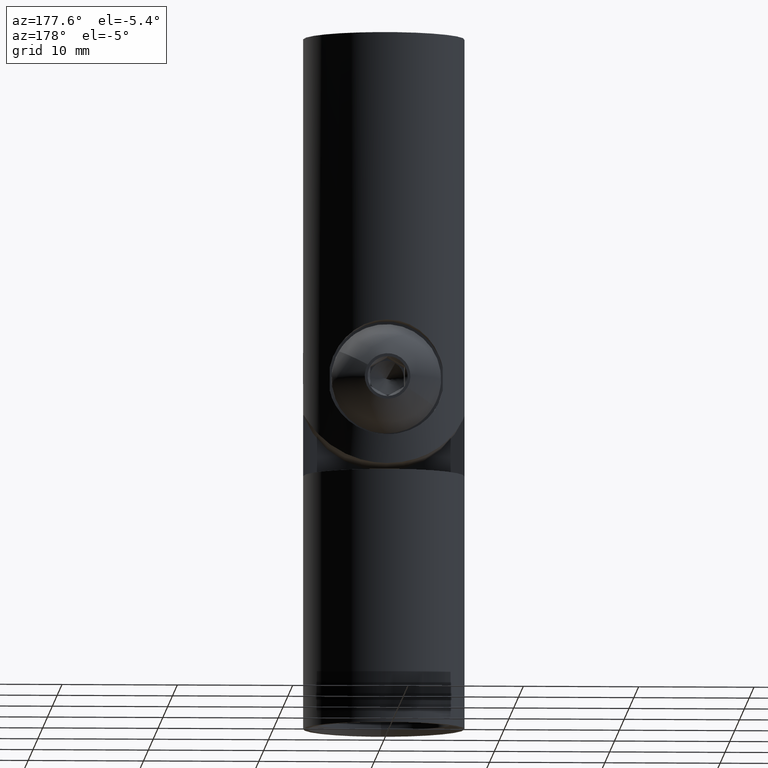
[diagram: clean part render]
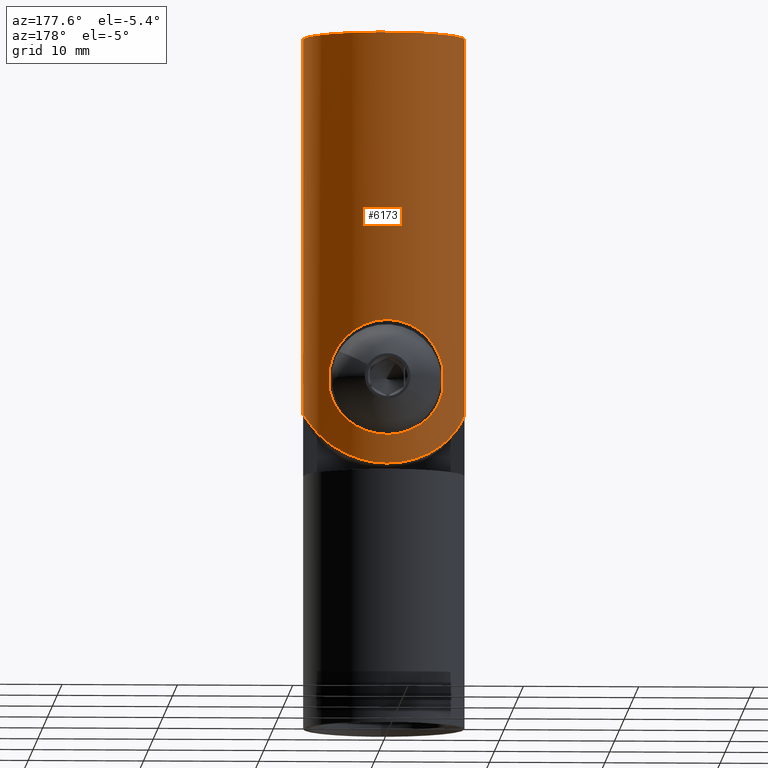
[diagram: same view with one face highlighted and labeled with its STEP entity id]
A machine part, auxiliary view. The second image highlights one B-rep face of the part: STEP entity #6173.
In plain terms, the highlighted cylindrical surface (partial cylindrical patch) has radius 7 mm, axis along (-0, -0, -1).
Its self-contained STEP definition (entity closure, byte-faithful):
#40 = CARTESIAN_POINT ( 'NONE',  ( 0.000000000000000000, 7.000000000000000000, -13.00000000000000178 ) ) ;
#93 = CARTESIAN_POINT ( 'NONE',  ( -2.296083420598693969, 6.637111014351908977, -12.48031419842977208 ) ) ;
#186 = EDGE_CURVE ( 'NONE', #10665, #5879, #13745, .T. ) ;
#239 = CARTESIAN_POINT ( 'NONE',  ( -0.6044185469944249878, 6.980038597748216667, -12.97215643878880265 ) ) ;
#241 = CARTESIAN_POINT ( 'NONE',  ( 7.000000000000000000, 8.572527594031473190E-16, 22.00000000000000000 ) ) ;
#258 = DIRECTION ( 'NONE',  ( 0.000000000000000000, 0.000000000000000000, 1.000000000000000000 ) ) ;
#556 = EDGE_CURVE ( 'NONE', #13725, #5879, #945, .T. ) ;
#655 = DIRECTION ( 'NONE',  ( -0.000000000000000000, -0.000000000000000000, -1.000000000000000000 ) ) ;
#721 = CARTESIAN_POINT ( 'NONE',  ( 2.299731958036054014, 6.635776688420713221, -3.521655312212912392 ) ) ;
#760 = CARTESIAN_POINT ( 'NONE',  ( -1.459497406017914445, 6.851924628215163793, -3.208951439311452880 ) ) ;
#809 = VERTEX_POINT ( 'NONE', #12343 ) ;
#814 = CARTESIAN_POINT ( 'NONE',  ( -1.014079867848785677, 6.930787867623797283, -15.43543686387268643 ) ) ;
#896 = CARTESIAN_POINT ( 'NONE',  ( 4.546330511644266714, 5.324515403986026740, -10.10048989220393878 ) ) ;
#945 = LINE ( 'NONE', #241, #13899 ) ;
#1223 = CARTESIAN_POINT ( 'NONE',  ( -4.136939707189043247, 5.649690451566032223, -10.82201691694677770 ) ) ;
#1308 = EDGE_CURVE ( 'NONE', #6733, #7098, #12537, .T. ) ;
#1375 = VERTEX_POINT ( 'NONE', #12421 ) ;
#1423 = CARTESIAN_POINT ( 'NONE',  ( -7.000000000000000000, 0.000000000000000000, 22.00000000000000000 ) ) ;
#1469 = EDGE_CURVE ( 'NONE', #809, #8125, #10195, .T. ) ;
#1539 = ORIENTED_EDGE ( 'NONE', *, *, #12092, .T. ) ;
#1548 = EDGE_LOOP ( 'NONE', ( #5910, #9254, #3212, #1539, #1790, #13197, #5411 ) ) ;
#1588 = LINE ( 'NONE', #6411, #5340 ) ;
#1615 = CARTESIAN_POINT ( 'NONE',  ( 2.450138959679273020E-16, 7.000000000000015987, -15.50000000000001599 ) ) ;
#1666 = CARTESIAN_POINT ( 'NONE',  ( 4.898979485566355763, 5.000000000000000000, -6.999999999999991118 ) ) ;
#1667 = CARTESIAN_POINT ( 'NONE',  ( 2.011643523409857526, 6.710629377911315530, -12.58670777686183584 ) ) ;
#1786 = CARTESIAN_POINT ( 'NONE',  ( 3.976657288431754811, 5.764672624529453948, -4.956698721148406150 ) ) ;
#1790 = ORIENTED_EDGE ( 'NONE', *, *, #11146, .T. ) ;
#1799 = CARTESIAN_POINT ( 'NONE',  ( -4.453659042678379976, 5.419030401526724106, -14.05006662118064042 ) ) ;
#1832 = CARTESIAN_POINT ( 'NONE',  ( 0.000000000000000000, 7.000000000000000000, -13.00000000000000178 ) ) ;
#1860 = CARTESIAN_POINT ( 'NONE',  ( 3.103023685434608048, 6.279158656940742489, -14.83201125660004216 ) ) ;
#1872 = CARTESIAN_POINT ( 'NONE',  ( -1.172527317746810294, 6.907427810759570797, -3.130305481393267364 ) ) ;
#1874 = CARTESIAN_POINT ( 'NONE',  ( 4.839711728850256911, 5.058070304861542077, -9.290351524307714826 ) ) ;
#1884 = CARTESIAN_POINT ( 'NONE',  ( -3.907927142053708280, 5.811914296742112462, -14.40509185724050845 ) ) ;
#1997 = CARTESIAN_POINT ( 'NONE',  ( 2.450138959679273020E-16, 7.000000000000015987, -15.50000000000001599 ) ) ;
#2043 = CARTESIAN_POINT ( 'NONE',  ( 4.450173661542899950, 5.421836666788093062, -14.05258568978487865 ) ) ;
#2098 = CARTESIAN_POINT ( 'NONE',  ( 4.898979485566355763, 5.000000000000000888, 22.00000000000000000 ) ) ;
#2342 = CARTESIAN_POINT ( 'NONE',  ( -4.839578810093749794, 5.058200538113820421, -9.291002690569090561 ) ) ;
#2345 = EDGE_CURVE ( 'NONE', #1375, #6945, #4607, .T. ) ;
#2349 = CARTESIAN_POINT ( 'NONE',  ( -4.898979485566355763, 5.000000000000000000, -9.000000000000007105 ) ) ;
#2406 = EDGE_CURVE ( 'NONE', #2965, #7098, #1588, .T. ) ;
#2408 = LINE ( 'NONE', #2589, #9095 ) ;
#2480 = CARTESIAN_POINT ( 'NONE',  ( -7.000000000000000000, 0.000000000000000000, -20.00000000000000000 ) ) ;
#2497 = DIRECTION ( 'NONE',  ( -0.000000000000000000, -0.000000000000000000, -1.000000000000000000 ) ) ;
#2589 = CARTESIAN_POINT ( 'NONE',  ( -4.898979485566355763, 5.000000000000000888, 22.00000000000000000 ) ) ;
#2844 = ORIENTED_EDGE ( 'NONE', *, *, #6286, .T. ) ;
#2864 = DIRECTION ( 'NONE',  ( -0.000000000000000000, -0.000000000000000000, 1.000000000000000000 ) ) ;
#2932 = CARTESIAN_POINT ( 'NONE',  ( -0.2900063760935404078, 7.000369636473305235, -2.999482508542872239 ) ) ;
#2965 = VERTEX_POINT ( 'NONE', #1423 ) ;
#2973 = CARTESIAN_POINT ( 'NONE',  ( -2.266863554783694390, 6.628038431484474913, -3.534307485835470164 ) ) ;
#2987 = CARTESIAN_POINT ( 'NONE',  ( -6.607538234081038020, 2.321347933528485452, -11.55127047643201443 ) ) ;
#3029 = CARTESIAN_POINT ( 'NONE',  ( 1.475203136158575568, 6.848675093871658071, -3.213575419749237216 ) ) ;
#3043 = CARTESIAN_POINT ( 'NONE',  ( -3.715343988396557773, 5.937165706032342172, -14.51902597105185500 ) ) ;
#3198 = CARTESIAN_POINT ( 'NONE',  ( -7.000000000000000000, 0.000000000000000000, 0.000000000000000000 ) ) ;
#3212 = ORIENTED_EDGE ( 'NONE', *, *, #186, .F. ) ;
#3442 = CARTESIAN_POINT ( 'NONE',  ( -4.550123549023610714, 5.321232183265161453, -10.09193324840386197 ) ) ;
#3695 = VECTOR ( 'NONE', #2864, 1000.000000000000000 ) ;
#3769 = FACE_BOUND ( 'NONE', #4560, .T. ) ;
#3850 = CARTESIAN_POINT ( 'NONE',  ( 2.760900980508051106, 6.437904290453270839, -12.17828848556697530 ) ) ;
#4047 = CARTESIAN_POINT ( 'NONE',  ( 0.3019887788853311550, 7.000000000000000000, -13.00000000000000355 ) ) ;
#4128 = CARTESIAN_POINT ( 'NONE',  ( 4.780075918394988577, 5.131956242353456155, -13.79341726137005075 ) ) ;
#4174 = CARTESIAN_POINT ( 'NONE',  ( 1.008089008733077163, 6.945344152790238645, -15.44890853163632904 ) ) ;
#4215 = LINE ( 'NONE', #2098, #8303 ) ;
#4221 = CARTESIAN_POINT ( 'NONE',  ( 3.314031259553643416, 6.170156425056483762, -14.73190892426335807 ) ) ;
#4560 = EDGE_LOOP ( 'NONE', ( #6086, #13047, #2844, #11816, #9940 ) ) ;
#4607 = B_SPLINE_CURVE_WITH_KNOTS ( 'NONE', 3,
 ( #1832, #4047, #12787, #6220, #7322, #1667, #9310, #3850, #11487, #4965, #12600, #6053, #11826, #5373, #896, #5283, #1874, #9682 ),
 .UNSPECIFIED., .F., .F.,
 ( 4, 2, 2, 2, 2, 2, 2, 2, 4 ),
 ( -1.301042606982605321E-18, 0.0008913439313030541589, 0.001782687862606109619, 0.002674031793909164862, 0.003565375725212220539, 0.004456719656515275782, 0.005348063587818330591, 0.006239407519121387136, 0.007130751450424441945 ),
 .UNSPECIFIED. ) ;
#4910 = VERTEX_POINT ( 'NONE', #2349 ) ;
#4965 = CARTESIAN_POINT ( 'NONE',  ( 3.418465246275857794, 6.113217916019591414, -11.65937600562722665 ) ) ;
#5044 = CARTESIAN_POINT ( 'NONE',  ( -0.5860100824662537455, 6.981688295460144467, -3.025531465708232393 ) ) ;
#5094 = CARTESIAN_POINT ( 'NONE',  ( -3.415837379854710143, 6.114725322684314790, -4.338094436667679688 ) ) ;
#5105 = CARTESIAN_POINT ( 'NONE',  ( -5.632424313929414339, 4.177368838400298934, -12.96587217374101542 ) ) ;
#5127 = CYLINDRICAL_SURFACE ( 'NONE', #6316, 7.000000000000000000 ) ;
#5140 = CARTESIAN_POINT ( 'NONE',  ( -4.134643339375571713, 5.651342518334890208, -5.174794650016542263 ) ) ;
#5172 = CARTESIAN_POINT ( 'NONE',  ( 7.000000000000000000, 0.000000000000000000, -10.69258240356725054 ) ) ;
#5195 = CARTESIAN_POINT ( 'NONE',  ( -1.988797161500903909, 6.729888983140163816, -15.24843961918347723 ) ) ;
#5283 = CARTESIAN_POINT ( 'NONE',  ( 4.755513866451237526, 5.138547778738862704, -9.570435218131756017 ) ) ;
#5340 = VECTOR ( 'NONE', #13945, 1000.000000000000000 ) ;
#5373 = CARTESIAN_POINT ( 'NONE',  ( 4.422266827701750280, 5.429182206199155480, -10.34938044367606835 ) ) ;
#5411 = ORIENTED_EDGE ( 'NONE', *, *, #2406, .F. ) ;
#5749 = EDGE_CURVE ( 'NONE', #8125, #4910, #2408, .T. ) ;
#5879 = VERTEX_POINT ( 'NONE', #13867 ) ;
#5910 = ORIENTED_EDGE ( 'NONE', *, *, #7617, .F. ) ;
#6053 = CARTESIAN_POINT ( 'NONE',  ( 3.975260454887756367, 5.765706701776081466, -11.04532986885995527 ) ) ;
#6076 = CARTESIAN_POINT ( 'NONE',  ( 0.000000000000000000, 0.000000000000000000, 22.00000000000000000 ) ) ;
#6086 = ORIENTED_EDGE ( 'NONE', *, *, #1469, .T. ) ;
#6157 = CARTESIAN_POINT ( 'NONE',  ( 7.000000000000000000, 0.000000000000000000, -20.00000000000000000 ) ) ;
#6173 = ADVANCED_FACE ( 'NONE', ( #3769, #9414 ), #5127, .T. ) ;
#6174 = CARTESIAN_POINT ( 'NONE',  ( 0.3075841348478650095, 6.999619328607964874, -3.000532940349194710 ) ) ;
#6188 = CARTESIAN_POINT ( 'NONE',  ( -6.532492044656816432, 2.524209097300211813, -11.68818189566784582 ) ) ;
#6220 = CARTESIAN_POINT ( 'NONE',  ( 1.178522539968373417, 6.906282787911510290, -12.86807036236273305 ) ) ;
#6265 = CARTESIAN_POINT ( 'NONE',  ( -4.756686990366632450, 5.137444608518727307, -6.433251261410824817 ) ) ;
#6278 = CARTESIAN_POINT ( 'NONE',  ( -6.740042051753206032, 1.902643130999128518, -11.29285843185200910 ) ) ;
#6286 = EDGE_CURVE ( 'NONE', #4910, #1375, #13988, .T. ) ;
#6316 = AXIS2_PLACEMENT_3D ( 'NONE', #6076, #655, #8269 ) ;
#6319 = CARTESIAN_POINT ( 'NONE',  ( -4.779645340135918907, 5.132038751092206752, -13.79352977384220935 ) ) ;
#6390 = CARTESIAN_POINT ( 'NONE',  ( 1.992725003126049277, 6.729271573665478456, -15.24786374210561313 ) ) ;
#6411 = CARTESIAN_POINT ( 'NONE',  ( -7.000000000000000000, 0.000000000000000000, 22.00000000000000000 ) ) ;
#6448 = CARTESIAN_POINT ( 'NONE',  ( 5.374052073176598832, 4.506180752459514771, -13.24713004076956935 ) ) ;
#6542 = CARTESIAN_POINT ( 'NONE',  ( -2.777687818370432549, 6.443299190317823388, -12.19467356744221576 ) ) ;
#6597 = CARTESIAN_POINT ( 'NONE',  ( -3.419496295163406696, 6.112688328831445972, -11.65851801632767781 ) ) ;
#6654 = CARTESIAN_POINT ( 'NONE',  ( -4.756805042399448347, 5.137308833251054807, -9.566082633758494325 ) ) ;
#6712 = AXIS2_PLACEMENT_3D ( 'NONE', #9307, #8025, #7054 ) ;
#6733 = VERTEX_POINT ( 'NONE', #6751 ) ;
#6736 = CARTESIAN_POINT ( 'NONE',  ( -1.186992972510849453, 6.904875689627988145, -12.86607738480900487 ) ) ;
#6751 = CARTESIAN_POINT ( 'NONE',  ( -6.999999999999999112, -0.000000000000000000, -10.69258240356725054 ) ) ;
#6915 = DIRECTION ( 'NONE',  ( -0.000000000000000000, -0.000000000000000000, 1.000000000000000000 ) ) ;
#6945 = VERTEX_POINT ( 'NONE', #12670 ) ;
#7054 = DIRECTION ( 'NONE',  ( 1.000000000000000000, 0.000000000000000000, 0.000000000000000000 ) ) ;
#7098 = VERTEX_POINT ( 'NONE', #3198 ) ;
#7183 = CARTESIAN_POINT ( 'NONE',  ( -4.898979485566355763, 5.000000000000000000, -6.999999999999991118 ) ) ;
#7227 = CARTESIAN_POINT ( 'NONE',  ( -4.548511329816591342, 5.322635898918072428, -5.904333658063850798 ) ) ;
#7284 = CARTESIAN_POINT ( 'NONE',  ( -6.999999999999998224, 0.2574305402265175124, -10.69258240356724698 ) ) ;
#7322 = CARTESIAN_POINT ( 'NONE',  ( 1.466243900551742918, 6.850502546314248598, -12.78902147830812197 ) ) ;
#7330 = CARTESIAN_POINT ( 'NONE',  ( -0.5104234960644172814, 6.985960656849049322, -15.48689169079388428 ) ) ;
#7494 = CARTESIAN_POINT ( 'NONE',  ( 6.740121740763215463, 1.902307747566967411, -11.29268047561311050 ) ) ;
#7617 = EDGE_CURVE ( 'NONE', #13725, #2965, #9393, .T. ) ;
#7735 = CARTESIAN_POINT ( 'NONE',  ( -4.898979485566355763, 5.000000000000000000, -9.000000000000007105 ) ) ;
#7842 = CARTESIAN_POINT ( 'NONE',  ( -0.3025679691935315718, 7.000000000000000000, -13.00000000000000355 ) ) ;
#8025 = DIRECTION ( 'NONE',  ( 0.000000000000000000, 0.000000000000000000, 1.000000000000000000 ) ) ;
#8125 = VERTEX_POINT ( 'NONE', #13543 ) ;
#8269 = DIRECTION ( 'NONE',  ( -1.000000000000000000, 0.000000000000000000, 0.000000000000000000 ) ) ;
#8303 = VECTOR ( 'NONE', #258, 1000.000000000000000 ) ;
#8335 = CARTESIAN_POINT ( 'NONE',  ( -4.839624708239068873, 5.058155567299349009, -6.709222163503257619 ) ) ;
#8380 = CARTESIAN_POINT ( 'NONE',  ( 4.426164966053137029, 5.426071599279982394, -5.657569479460876849 ) ) ;
#8391 = CARTESIAN_POINT ( 'NONE',  ( -5.368749732199646019, 4.512134487490519597, -13.25228741891429429 ) ) ;
#8411 = CARTESIAN_POINT ( 'NONE',  ( 3.905059737702613276, 5.813828175976520463, -14.40682981141950592 ) ) ;
#8423 = CARTESIAN_POINT ( 'NONE',  ( 4.550541201749033426, 5.320870568143509338, -5.909009481069249503 ) ) ;
#8435 = CARTESIAN_POINT ( 'NONE',  ( -2.458891047116524842, 6.571046651608046574, -15.10090493762181119 ) ) ;
#8486 = CARTESIAN_POINT ( 'NONE',  ( -6.999999999999999112, -0.000000000000000000, -10.69258240356725054 ) ) ;
#8562 = CARTESIAN_POINT ( 'NONE',  ( 7.000000000000001776, 0.2588094665075409972, -10.69258240356725942 ) ) ;
#8826 = B_SPLINE_CURVE_WITH_KNOTS ( 'NONE', 3,
 ( #5172, #8562, #9667, #11708, #13878, #14023, #7494, #10657, #9620, #13010, #12959, #10710, #6448, #4128, #2043, #8411, #12819, #4221, #1860, #11763, #6390, #4174, #9523, #1997 ),
 .UNSPECIFIED., .F., .F.,
 ( 4, 2, 2, 2, 2, 2, 2, 2, 2, 2, 2, 4 ),
 ( 6.470060159227675281E-19, 0.0007598753823257431384, 0.001519750764651485626, 0.002279626146977227572, 0.003039501529302970385, 0.004559252293954451675, 0.006079003058605931230, 0.007598753823257412519, 0.008358629205583152297, 0.009118504587908889472, 0.01063825535256037597, 0.01215800611721186072 ),
 .UNSPECIFIED. ) ;
#9095 = VECTOR ( 'NONE', #2497, 1000.000000000000000 ) ;
#9254 = ORIENTED_EDGE ( 'NONE', *, *, #556, .T. ) ;
#9307 = CARTESIAN_POINT ( 'NONE',  ( 0.000000000000000000, 0.000000000000000000, 22.00000000000000000 ) ) ;
#9310 = CARTESIAN_POINT ( 'NONE',  ( 2.269976062349295276, 6.626944586577449670, -12.46406513943883532 ) ) ;
#9393 = CIRCLE ( 'NONE', #6712, 7.000000000000000000 ) ;
#9414 = FACE_OUTER_BOUND ( 'NONE', #1548, .T. ) ;
#9459 = CARTESIAN_POINT ( 'NONE',  ( -6.893911361947512972, 1.235798923973859154, -10.95599155336305763 ) ) ;
#9463 = VECTOR ( 'NONE', #6915, 1000.000000000000000 ) ;
#9488 = CARTESIAN_POINT ( 'NONE',  ( 0.6104354240936448184, 6.979499931743289309, -3.028598292838251993 ) ) ;
#9523 = CARTESIAN_POINT ( 'NONE',  ( 0.5075718625939676931, 7.000000000000017764, -15.50000000000002132 ) ) ;
#9555 = CARTESIAN_POINT ( 'NONE',  ( -6.284989493064337296, 3.111148115031149075, -12.10529647019767907 ) ) ;
#9587 = CARTESIAN_POINT ( 'NONE',  ( 4.137930488203147128, 5.648957477449079612, -5.179459568616640475 ) ) ;
#9599 = CARTESIAN_POINT ( 'NONE',  ( -6.932747388628011542, 0.9984988950966647847, -10.86217282458833999 ) ) ;
#9620 = CARTESIAN_POINT ( 'NONE',  ( 6.532879242117107133, 2.523288396727773719, -11.68752833124478485 ) ) ;
#9667 = CARTESIAN_POINT ( 'NONE',  ( 6.985767384123422019, 0.5091773339154153089, -10.73021408184763281 ) ) ;
#9682 = CARTESIAN_POINT ( 'NONE',  ( 4.898979485566355763, 5.000000000000000000, -9.000000000000007105 ) ) ;
#9940 = ORIENTED_EDGE ( 'NONE', *, *, #10639, .T. ) ;
#9952 = B_SPLINE_CURVE_WITH_KNOTS ( 'NONE', 3,
 ( #10550, #13860, #7330, #814, #11739, #5195, #8435, #11639, #12746, #3043, #1884, #1799, #6319, #8391, #5105, #13779, #9555, #6188, #2987, #6278, #13906, #9459, #9599, #10686, #7284, #8486 ),
 .UNSPECIFIED., .F., .F.,
 ( 4, 2, 2, 2, 2, 2, 2, 2, 2, 2, 2, 2, 4 ),
 ( 0.01215800611721186072, 0.01291599823136547684, 0.01367399034551909295, 0.01518997457382632518, 0.01594796668797994130, 0.01670595880213356088, 0.01822194303044078964, 0.01973792725874802187, 0.02125391148705525063, 0.02201190360120886674, 0.02276989571536248286, 0.02352788782951609897, 0.02428587994366971162 ),
 .UNSPECIFIED. ) ;
#10195 = B_SPLINE_CURVE_WITH_KNOTS ( 'NONE', 3,
 ( #1666, #10411, #13724, #8423, #8380, #9587, #1786, #10492, #13767, #13811, #721, #3029, #10671, #9488, #6174, #2932, #5044, #1872, #760, #10535, #2973, #10631, #10586, #5094, #12734, #11671, #5140, #11724, #7227, #6265, #8335, #7183 ),
 .UNSPECIFIED., .F., .F.,
 ( 4, 2, 2, 2, 2, 2, 2, 2, 2, 2, 2, 2, 2, 2, 2, 4 ),
 ( 4.982613841084487634E-18, 0.0008903713401083064713, 0.001780742680216607955, 0.002671114020324909331, 0.003561485360433210706, 0.005342228040649812590, 0.006232599380758112664, 0.007122970720866412739, 0.008013342060974711079, 0.008903713401083012888, 0.009794084741191312962, 0.01068445608129961477, 0.01157482742140791658, 0.01246519876151621666, 0.01335557010162451673, 0.01424594144173281680 ),
 .UNSPECIFIED. ) ;
#10411 = CARTESIAN_POINT ( 'NONE',  ( 4.839633333549913985, 5.058147116255175213, -6.709264418724129264 ) ) ;
#10492 = CARTESIAN_POINT ( 'NONE',  ( 3.619266846054839615, 5.995511750858716127, -4.539307387162879515 ) ) ;
#10535 = CARTESIAN_POINT ( 'NONE',  ( -2.004173547763651531, 6.712845311740689880, -3.410058020029743453 ) ) ;
#10550 = CARTESIAN_POINT ( 'NONE',  ( 2.450138959679273020E-16, 7.000000000000015987, -15.50000000000001599 ) ) ;
#10586 = CARTESIAN_POINT ( 'NONE',  ( -2.988219876973888578, 6.334694368661179631, -3.981537691201388895 ) ) ;
#10631 = CARTESIAN_POINT ( 'NONE',  ( -2.759197394509882884, 6.438663957947458272, -3.820537146330695855 ) ) ;
#10639 = EDGE_CURVE ( 'NONE', #6945, #809, #4215, .T. ) ;
#10657 = CARTESIAN_POINT ( 'NONE',  ( 6.607943614560038981, 2.320150217886219668, -11.55050235622903898 ) ) ;
#10665 = VERTEX_POINT ( 'NONE', #11022 ) ;
#10671 = CARTESIAN_POINT ( 'NONE',  ( 1.192239523120523836, 6.903956519540249026, -3.135225466635839453 ) ) ;
#10686 = CARTESIAN_POINT ( 'NONE',  ( -6.985580845729351118, 0.5115140719637790712, -10.73069219798198759 ) ) ;
#10710 = CARTESIAN_POINT ( 'NONE',  ( 5.633239040031285505, 4.176100115385804834, -12.96483851310754076 ) ) ;
#10810 = CARTESIAN_POINT ( 'NONE',  ( 7.000000000000000000, 8.572527594031473190E-16, 22.00000000000000000 ) ) ;
#11022 = CARTESIAN_POINT ( 'NONE',  ( 7.000000000000000000, 0.000000000000000000, -10.69258240356725054 ) ) ;
#11106 = CARTESIAN_POINT ( 'NONE',  ( -1.470207249055080823, 6.849766497306372770, -12.78798436114570158 ) ) ;
#11146 = EDGE_CURVE ( 'NONE', #12954, #6733, #9952, .T. ) ;
#11156 = CARTESIAN_POINT ( 'NONE',  ( -4.425566527248993687, 5.426567354444890690, -10.34358924160025062 ) ) ;
#11487 = CARTESIAN_POINT ( 'NONE',  ( 2.992725747131475433, 6.332529552334921874, -12.01503798151555280 ) ) ;
#11639 = CARTESIAN_POINT ( 'NONE',  ( -3.106612020093074911, 6.277353070874141849, -14.83035217139615014 ) ) ;
#11671 = CARTESIAN_POINT ( 'NONE',  ( -3.973478704353185176, 5.766886771113660437, -4.952501308339368968 ) ) ;
#11708 = CARTESIAN_POINT ( 'NONE',  ( 6.932968535161324830, 0.9970731131260337499, -10.86163627462763337 ) ) ;
#11724 = CARTESIAN_POINT ( 'NONE',  ( -4.421977009742358966, 5.429462876629004064, -5.649855294087628543 ) ) ;
#11739 = CARTESIAN_POINT ( 'NONE',  ( -1.261126782524492951, 6.889937532891408978, -15.39735473017450218 ) ) ;
#11763 = CARTESIAN_POINT ( 'NONE',  ( 2.452858028863418305, 6.573419598340604963, -15.10309951365961645 ) ) ;
#11816 = ORIENTED_EDGE ( 'NONE', *, *, #2345, .T. ) ;
#11826 = CARTESIAN_POINT ( 'NONE',  ( 4.137108293097035983, 5.649495401776034598, -10.82141229452673237 ) ) ;
#12092 = EDGE_CURVE ( 'NONE', #10665, #12954, #8826, .T. ) ;
#12146 = CARTESIAN_POINT ( 'NONE',  ( -3.975440588923228269, 5.765521960548063873, -11.04491356428987281 ) ) ;
#12343 = CARTESIAN_POINT ( 'NONE',  ( 4.898979485566355763, 5.000000000000000000, -6.999999999999991118 ) ) ;
#12421 = CARTESIAN_POINT ( 'NONE',  ( 0.000000000000000000, 7.000000000000000000, -13.00000000000000178 ) ) ;
#12482 = DIRECTION ( 'NONE',  ( -0.000000000000000000, -0.000000000000000000, -1.000000000000000000 ) ) ;
#12537 = LINE ( 'NONE', #2480, #9463 ) ;
#12600 = CARTESIAN_POINT ( 'NONE',  ( 3.614541850212047880, 5.998429516812353590, -11.46580681911596322 ) ) ;
#12670 = CARTESIAN_POINT ( 'NONE',  ( 4.898979485566355763, 5.000000000000000000, -9.000000000000007105 ) ) ;
#12734 = CARTESIAN_POINT ( 'NONE',  ( -3.614905331433766911, 5.998164343327523795, -4.534709141443785008 ) ) ;
#12746 = CARTESIAN_POINT ( 'NONE',  ( -3.314477365227490591, 6.169923611228554705, -14.73169520691167911 ) ) ;
#12787 = CARTESIAN_POINT ( 'NONE',  ( 0.5979084023943078696, 6.980556057089049027, -12.97287944479596611 ) ) ;
#12819 = CARTESIAN_POINT ( 'NONE',  ( 3.714606787842411162, 5.937619886004794623, -14.51943995797111064 ) ) ;
#12954 = VERTEX_POINT ( 'NONE', #1615 ) ;
#12959 = CARTESIAN_POINT ( 'NONE',  ( 6.088365690831984978, 3.479223687916303653, -12.39486140373828960 ) ) ;
#13010 = CARTESIAN_POINT ( 'NONE',  ( 6.284251995779093214, 3.112902014861516520, -12.10654141545128759 ) ) ;
#13047 = ORIENTED_EDGE ( 'NONE', *, *, #5749, .T. ) ;
#13197 = ORIENTED_EDGE ( 'NONE', *, *, #1308, .T. ) ;
#13300 = CARTESIAN_POINT ( 'NONE',  ( -3.617527615790600226, 5.996571128787903326, -11.46253092968815324 ) ) ;
#13543 = CARTESIAN_POINT ( 'NONE',  ( -4.898979485566355763, 5.000000000000000000, -6.999999999999991118 ) ) ;
#13724 = CARTESIAN_POINT ( 'NONE',  ( 4.756956418564135092, 5.137164048736697630, -6.434422722777543235 ) ) ;
#13725 = VERTEX_POINT ( 'NONE', #10810 ) ;
#13745 = LINE ( 'NONE', #6157, #3695 ) ;
#13767 = CARTESIAN_POINT ( 'NONE',  ( 3.421553473819721081, 6.111525691552762041, -4.343424612104074711 ) ) ;
#13779 = CARTESIAN_POINT ( 'NONE',  ( -6.089393219436294302, 3.477629118129822672, -12.39356123402894205 ) ) ;
#13811 = CARTESIAN_POINT ( 'NONE',  ( 2.780641105782200473, 6.441982059250350723, -3.807349047782485840 ) ) ;
#13860 = CARTESIAN_POINT ( 'NONE',  ( -0.2531569505745367987, 7.000000000000015099, -15.50000000000001421 ) ) ;
#13867 = CARTESIAN_POINT ( 'NONE',  ( 7.000000000000000000, 0.000000000000000000, 0.000000000000000000 ) ) ;
#13878 = CARTESIAN_POINT ( 'NONE',  ( 6.893906729206465300, 1.235818585233958267, -10.95600165118468539 ) ) ;
#13899 = VECTOR ( 'NONE', #12482, 1000.000000000000000 ) ;
#13906 = CARTESIAN_POINT ( 'NONE',  ( -6.797593286450170247, 1.686990918437769382, -11.17121828986121734 ) ) ;
#13945 = DIRECTION ( 'NONE',  ( -0.000000000000000000, -0.000000000000000000, -1.000000000000000000 ) ) ;
#13988 = B_SPLINE_CURVE_WITH_KNOTS ( 'NONE', 3,
 ( #7735, #2342, #6654, #3442, #11156, #1223, #12146, #13300, #6597, #6542, #93, #11106, #6736, #239, #7842, #40 ),
 .UNSPECIFIED., .F., .F.,
 ( 4, 2, 2, 2, 2, 2, 2, 4 ),
 ( -0.007144427660995972436, -0.006251374203371474689, -0.005358320745746977809, -0.004465267288122480062, -0.003572213830497983616, -0.001786106915248992892, -0.0008930534576244968797, -8.673617379884035472E-19 ),
 .UNSPECIFIED. ) ;
#14023 = CARTESIAN_POINT ( 'NONE',  ( 6.797603316884994307, 1.686945972128918392, -11.17119613065463035 ) ) ;